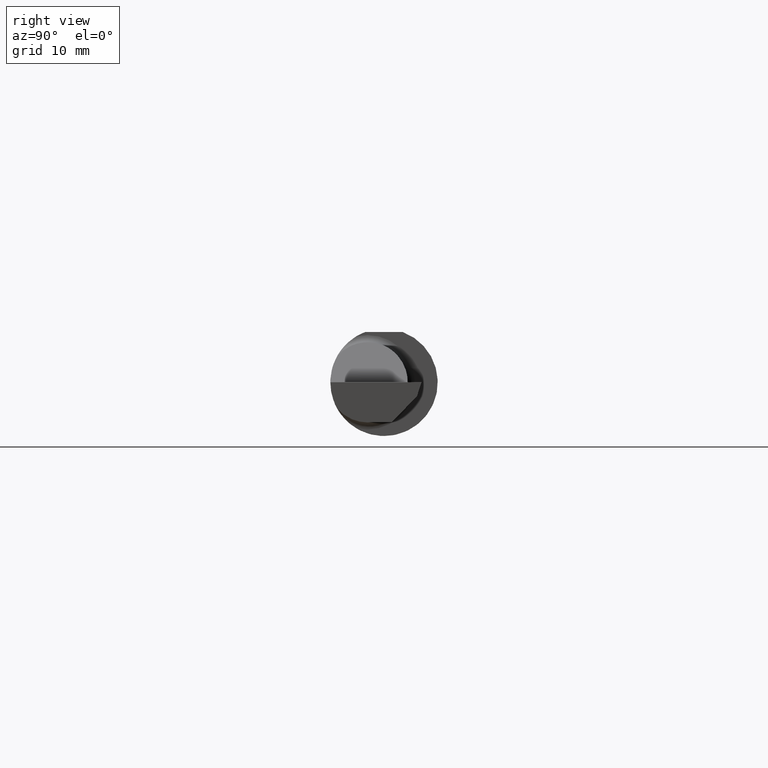
[diagram: clean part render]
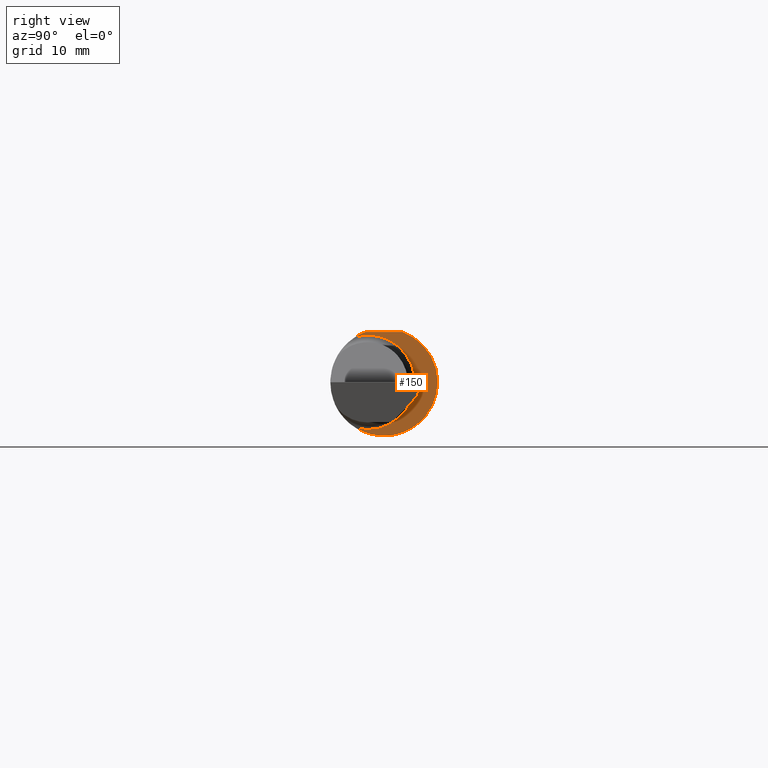
[diagram: same view with one face highlighted and labeled with its STEP entity id]
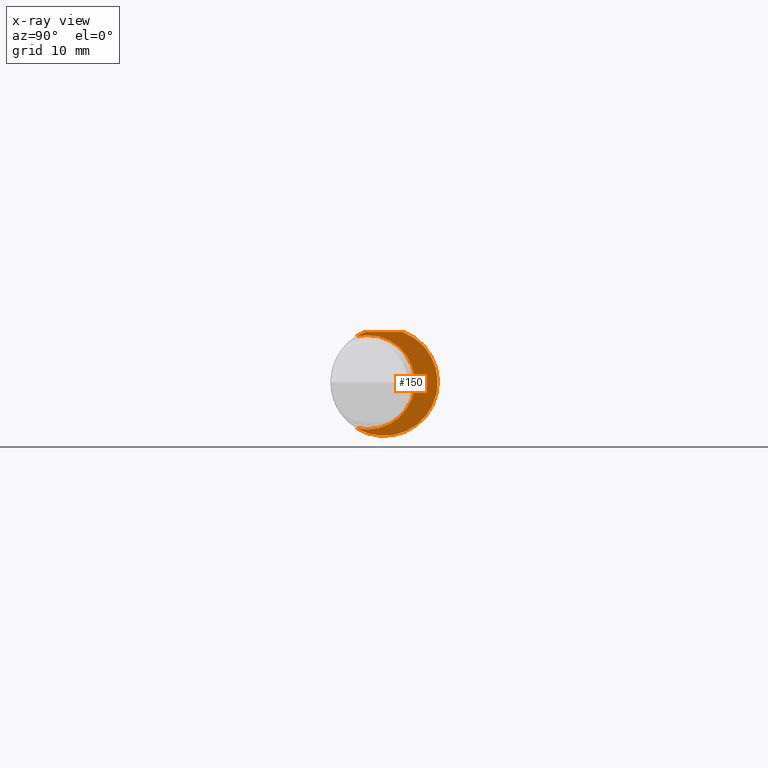
[diagram: x-ray of the same camera — body ghosted, the highlighted face saturated]
A machine part, right view. The second image highlights one B-rep face of the part: STEP entity #150.
The next image is the same camera in x-ray: the body ghosted, the highlighted face saturated — about 3% of this face is hidden behind the body in this view.
In plain terms, the highlighted planar face has unit normal (1, 0, 0).
Its self-contained STEP definition (entity closure, byte-faithful):
#9 = VERTEX_POINT ( 'NONE', #31 ) ;
#31 = CARTESIAN_POINT ( 'NONE',  ( 1.550000000000000044, -0.06597272163553659363, 0.1753499999999999781 ) ) ;
#38 = VERTEX_POINT ( 'NONE', #295 ) ;
#127 = CARTESIAN_POINT ( 'NONE',  ( 1.550000000000000044, 0.2373500000000000332, 0.1753499999999999504 ) ) ;
#133 = CARTESIAN_POINT ( 'NONE',  ( 1.550000000000000044, -0.05740000000000000657, 0.0000000000000000000 ) ) ;
#137 = DIRECTION ( 'NONE',  ( -1.000000000000000000, -6.829619984160658046E-18, -0.0000000000000000000 ) ) ;
#140 = DIRECTION ( 'NONE',  ( 0.0000000000000000000, -1.000000000000000000, 0.0000000000000000000 ) ) ;
#141 = ORIENTED_EDGE ( 'NONE', *, *, #299, .T. ) ;
#144 = LINE ( 'NONE', #127, #446 ) ;
#148 = AXIS2_PLACEMENT_3D ( 'NONE', #510, #511, #516 ) ;
#150 = ADVANCED_FACE ( 'NONE', ( #386 ), #293, .T. ) ;
#195 = AXIS2_PLACEMENT_3D ( 'NONE', #133, #137, #140 ) ;
#199 = CARTESIAN_POINT ( 'NONE',  ( 1.550000000000000044, 0.1076499999999999818, 0.0000000000000000000 ) ) ;
#200 = CIRCLE ( 'NONE', #195, 0.1650500000000000023 ) ;
#204 = CIRCLE ( 'NONE', #323, 0.1873499999999999888 ) ;
#215 = ORIENTED_EDGE ( 'NONE', *, *, #411, .T. ) ;
#221 = ORIENTED_EDGE ( 'NONE', *, *, #357, .T. ) ;
#238 = CARTESIAN_POINT ( 'NONE',  ( 1.550000000000000044, -0.09715400696864107122, -0.1601908905959925078 ) ) ;
#261 = VERTEX_POINT ( 'NONE', #527 ) ;
#279 = DIRECTION ( 'NONE',  ( 1.000000000000000000, 6.829619984160658046E-18, 0.0000000000000000000 ) ) ;
#293 = PLANE ( 'NONE',  #403 ) ;
#295 = CARTESIAN_POINT ( 'NONE',  ( 1.550000000000000044, -0.09715400696864107122, 0.1601908905959925078 ) ) ;
#299 = EDGE_CURVE ( 'NONE', #38, #584, #200, .T. ) ;
#312 = DIRECTION ( 'NONE',  ( 6.829619984160658046E-18, -1.000000000000000000, 1.438723400918613551E-16 ) ) ;
#319 = DIRECTION ( 'NONE',  ( -6.829619984160658046E-18, 1.000000000000000000, 0.0000000000000000000 ) ) ;
#323 = AXIS2_PLACEMENT_3D ( 'NONE', #520, #522, #530 ) ;
#357 = EDGE_CURVE ( 'NONE', #261, #9, #144, .T. ) ;
#386 = FACE_OUTER_BOUND ( 'NONE', #496, .T. ) ;
#403 = AXIS2_PLACEMENT_3D ( 'NONE', #199, #279, #319 ) ;
#411 = EDGE_CURVE ( 'NONE', #584, #261, #460, .T. ) ;
#413 = EDGE_CURVE ( 'NONE', #9, #38, #204, .T. ) ;
#446 = VECTOR ( 'NONE', #312, 39.37007874015748143 ) ;
#460 = CIRCLE ( 'NONE', #148, 0.1873499999999999888 ) ;
#496 = EDGE_LOOP ( 'NONE', ( #215, #221, #500, #141 ) ) ;
#500 = ORIENTED_EDGE ( 'NONE', *, *, #413, .T. ) ;
#510 = CARTESIAN_POINT ( 'NONE',  ( 1.550000000000000044, 0.0000000000000000000, 0.0000000000000000000 ) ) ;
#511 = DIRECTION ( 'NONE',  ( 1.000000000000000000, 6.829619984160658046E-18, 0.0000000000000000000 ) ) ;
#516 = DIRECTION ( 'NONE',  ( 0.0000000000000000000, 1.000000000000000000, 0.0000000000000000000 ) ) ;
#520 = CARTESIAN_POINT ( 'NONE',  ( 1.550000000000000044, 0.0000000000000000000, 0.0000000000000000000 ) ) ;
#522 = DIRECTION ( 'NONE',  ( 1.000000000000000000, 6.829619984160658046E-18, 0.0000000000000000000 ) ) ;
#527 = CARTESIAN_POINT ( 'NONE',  ( 1.550000000000000044, 0.06597272163553663527, 0.1753499999999999781 ) ) ;
#530 = DIRECTION ( 'NONE',  ( 0.0000000000000000000, 1.000000000000000000, 0.0000000000000000000 ) ) ;
#584 = VERTEX_POINT ( 'NONE', #238 ) ;